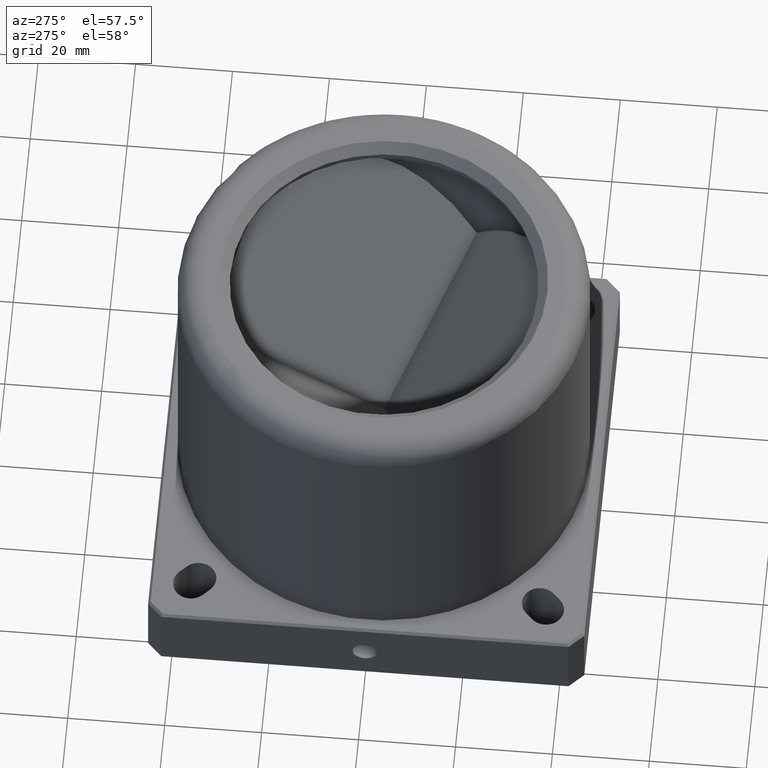
[diagram: clean part render]
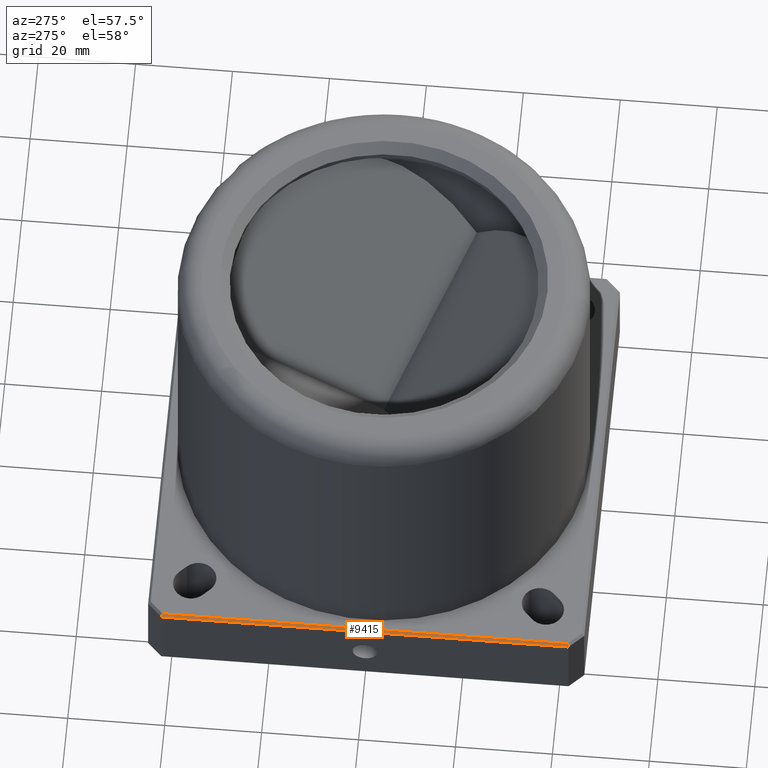
[diagram: same view with one face highlighted and labeled with its STEP entity id]
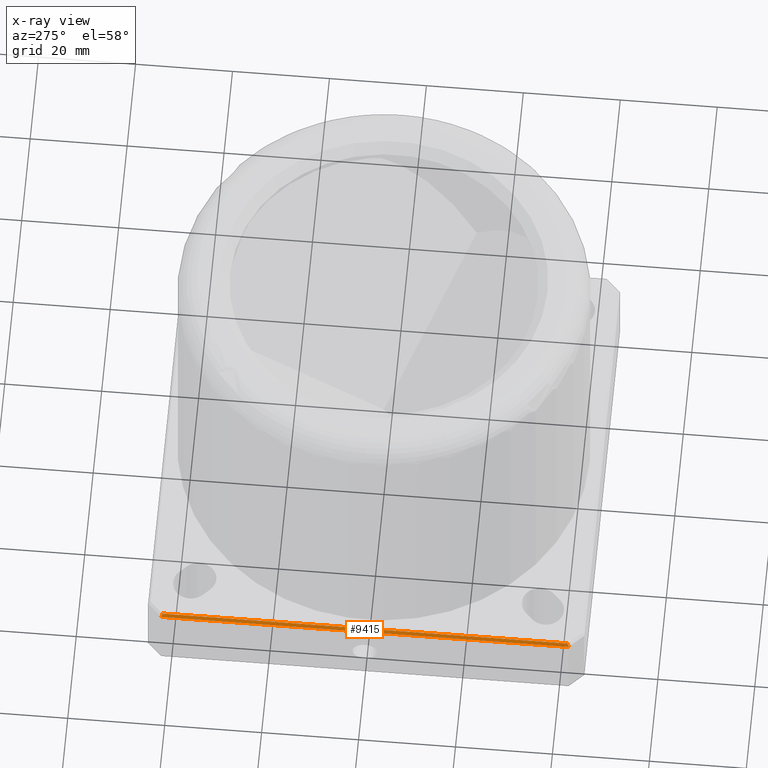
[diagram: x-ray of the same camera — body ghosted, the highlighted face saturated]
A machine part, auxiliary view. The second image highlights one B-rep face of the part: STEP entity #9415.
The next image is the same camera in x-ray: the body ghosted, the highlighted face saturated — about 0% of this face is hidden behind the body in this view.
In plain terms, the highlighted planar face has unit normal (-0.7071, 0, 0.7071).
Its self-contained STEP definition (entity closure, byte-faithful):
#923 = EDGE_LOOP ( 'NONE', ( #10072, #11295, #7591, #7047 ) ) ;
#1898 = VECTOR ( 'NONE', #3698, 1000.000000000000000 ) ;
#1936 = LINE ( 'NONE', #3608, #11602 ) ;
#2022 = LINE ( 'NONE', #7433, #11411 ) ;
#2954 = VERTEX_POINT ( 'NONE', #6838 ) ;
#3010 = EDGE_CURVE ( 'NONE', #5096, #6940, #8853, .T. ) ;
#3397 = VECTOR ( 'NONE', #4114, 1000.000000000000000 ) ;
#3447 = CARTESIAN_POINT ( 'NONE',  ( -44.50000000000000000, -42.00000000000000000, 16.00000000000000000 ) ) ;
#3608 = CARTESIAN_POINT ( 'NONE',  ( -36.52827435389684800, -38.49089634068014500, 23.97172564610314900 ) ) ;
#3698 = DIRECTION ( 'NONE',  ( 0.0000000000000000000, -1.000000000000000000, 0.0000000000000000000 ) ) ;
#3872 = DIRECTION ( 'NONE',  ( 0.0000000000000000000, 1.000000000000000000, 0.0000000000000000000 ) ) ;
#4114 = DIRECTION ( 'NONE',  ( -0.6785983445458475500, 0.2810846377148178400, -0.6785983445458475500 ) ) ;
#4187 = CARTESIAN_POINT ( 'NONE',  ( -44.50000000000000000, 0.0000000000000000000, 16.00000000000000000 ) ) ;
#4272 = CARTESIAN_POINT ( 'NONE',  ( -44.50000000000000000, -41.79289321881345400, 16.00000000000000000 ) ) ;
#5096 = VERTEX_POINT ( 'NONE', #5958 ) ;
#5116 = DIRECTION ( 'NONE',  ( 0.0000000000000000000, 1.000000000000000000, 0.0000000000000000000 ) ) ;
#5123 = AXIS2_PLACEMENT_3D ( 'NONE', #4187, #10528, #5116 ) ;
#5958 = CARTESIAN_POINT ( 'NONE',  ( -44.50000000000000000, 41.79289321881345400, 16.00000000000000000 ) ) ;
#6838 = CARTESIAN_POINT ( 'NONE',  ( -45.00000000000000000, -42.00000000000000000, 15.50000000000000000 ) ) ;
#6940 = VERTEX_POINT ( 'NONE', #4272 ) ;
#7047 = ORIENTED_EDGE ( 'NONE', *, *, #3010, .F. ) ;
#7433 = CARTESIAN_POINT ( 'NONE',  ( -45.00000000000000000, 42.00000000000000000, 15.50000000000000000 ) ) ;
#7591 = ORIENTED_EDGE ( 'NONE', *, *, #9639, .F. ) ;
#7901 = FACE_OUTER_BOUND ( 'NONE', #923, .T. ) ;
#8154 = LINE ( 'NONE', #9490, #3397 ) ;
#8594 = PLANE ( 'NONE',  #5123 ) ;
#8853 = LINE ( 'NONE', #3447, #1898 ) ;
#9006 = DIRECTION ( 'NONE',  ( -0.6785983445458482200, -0.2810846377148145700, -0.6785983445458482200 ) ) ;
#9148 = CARTESIAN_POINT ( 'NONE',  ( -45.00000000000000000, 42.00000000000000000, 15.50000000000000000 ) ) ;
#9369 = EDGE_CURVE ( 'NONE', #5096, #11183, #8154, .T. ) ;
#9415 = ADVANCED_FACE ( 'NONE', ( #7901 ), #8594, .T. ) ;
#9490 = CARTESIAN_POINT ( 'NONE',  ( -44.13487607169485500, 41.64165393576254800, 16.36512392830514900 ) ) ;
#9639 = EDGE_CURVE ( 'NONE', #6940, #2954, #1936, .T. ) ;
#10072 = ORIENTED_EDGE ( 'NONE', *, *, #9369, .T. ) ;
#10528 = DIRECTION ( 'NONE',  ( -0.7071067811865475700, 0.0000000000000000000, 0.7071067811865475700 ) ) ;
#10738 = EDGE_CURVE ( 'NONE', #2954, #11183, #2022, .T. ) ;
#11183 = VERTEX_POINT ( 'NONE', #9148 ) ;
#11295 = ORIENTED_EDGE ( 'NONE', *, *, #10738, .F. ) ;
#11411 = VECTOR ( 'NONE', #3872, 1000.000000000000000 ) ;
#11602 = VECTOR ( 'NONE', #9006, 1000.000000000000200 ) ;